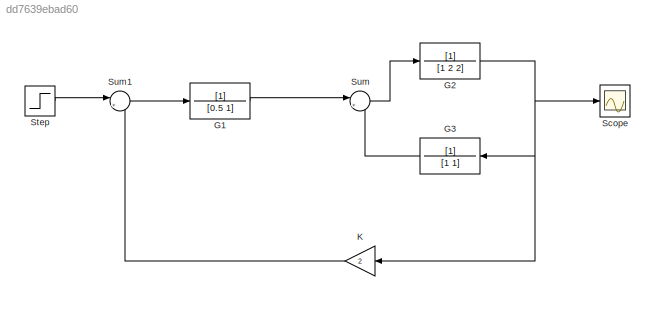
MODEL slx_dd7639ebad60
KIND model
BLOCK [TransferFcn] G1
  Denominator = [0.5 1]
BLOCK [TransferFcn] G2
  Denominator = [1 2 2]
BLOCK [TransferFcn] G3
  Denominator = [1 1]
BLOCK [Gain] K
  Gain = 2
  OutDataTypeStr = Inherit: Inherit via internal rule
  ParamDataTypeStr = Inherit: Inherit via internal rule
  SaturateOnIntegerOverflow = off
BLOCK [Scope] Scope
  Floating = off
  NumInputPorts = 1
  Ports = [1]
  ShowLegends = off
BLOCK [Step] Step
  SampleTime = 0
BLOCK [Sum] Sum
  IconShape = round
  InputSameDT = off
  Inputs = |+-
  OutDataTypeStr = Inherit: Inherit via internal rule
  Ports = [2, 1]
  SaturateOnIntegerOverflow = off
BLOCK [Sum] Sum1
  IconShape = round
  InputSameDT = off
  Inputs = |+-
  OutDataTypeStr = Inherit: Inherit via internal rule
  Ports = [2, 1]
  SaturateOnIntegerOverflow = off
LINE G1:1 -> Sum:1
NET G2:1 -> G3:1, K:1, Scope:1
LINE G3:1 -> Sum:2
LINE K:1 -> Sum1:2
LINE Step:1 -> Sum1:1
LINE Sum1:1 -> G1:1
LINE Sum:1 -> G2:1
note: NET lines group one-source signal fan-out (src -> all destinations, sorted); 1:1 wires keep LINE
